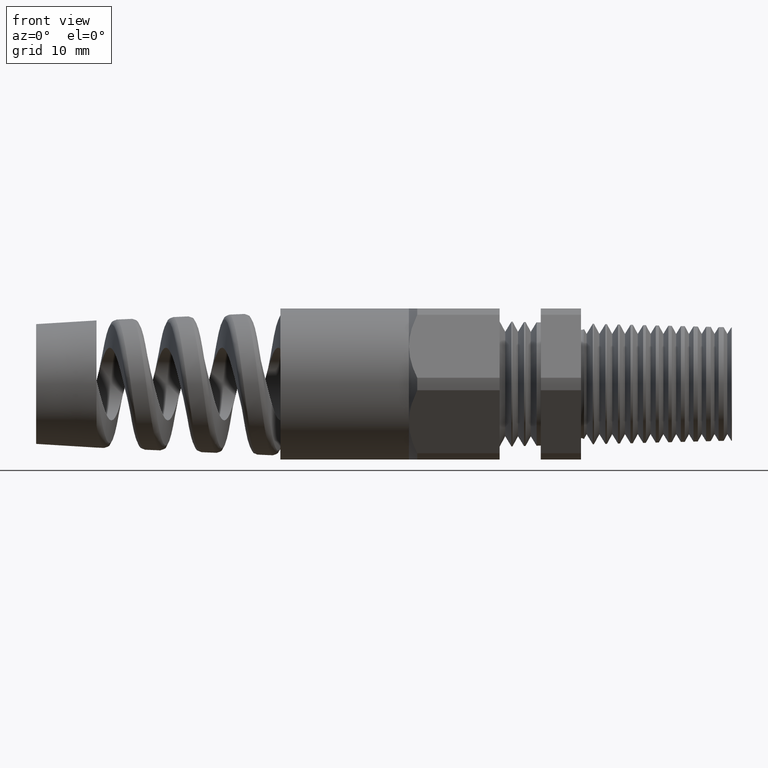
[diagram: clean part render]
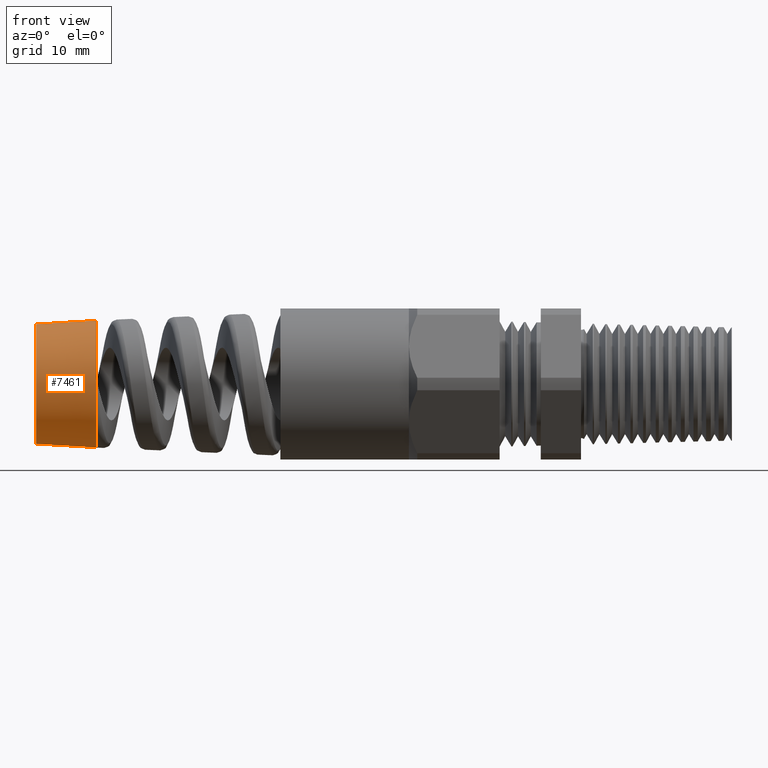
[diagram: same view with one face highlighted and labeled with its STEP entity id]
A machine part, front view. The second image highlights one B-rep face of the part: STEP entity #7461.
In plain terms, the highlighted conical surface has half-angle 3.5 deg.
Its self-contained STEP definition (entity closure, byte-faithful):
#1756 = CARTESIAN_POINT ( 'NONE',  ( -2.439999999999999900, 0.0000000000000000000, 0.2341065197523261300 ) ) ;
#1766 = DIRECTION ( 'NONE',  ( 0.9981347984218669200, 0.0000000000000000000, 0.06104853953485701200 ) ) ;
#1767 = VECTOR ( 'NONE', #1766, 39.37007874015748900 ) ;
#1768 = CARTESIAN_POINT ( 'NONE',  ( -2.203779527559055000, 0.0000000000000000000, 0.2485543827799996100 ) ) ;
#1769 = LINE ( 'NONE', #1768, #1767 ) ;
#1792 = CARTESIAN_POINT ( 'NONE',  ( -2.203779527559055000, 0.0000000000000000000, 0.2485543827799996100 ) ) ;
#1793 = DIRECTION ( 'NONE',  ( 0.0000000000000000000, 0.0000000000000000000, 1.000000000000000000 ) ) ;
#1794 = DIRECTION ( 'NONE',  ( -1.000000000000000000, 0.0000000000000000000, 0.0000000000000000000 ) ) ;
#1795 = CARTESIAN_POINT ( 'NONE',  ( -2.203779527559055000, 0.0000000000000000000, 0.0000000000000000000 ) ) ;
#1796 = AXIS2_PLACEMENT_3D ( 'NONE', #1795, #1794, #1793 ) ;
#1797 = CIRCLE ( 'NONE', #1796, 0.2485543827799996100 ) ;
#2358 = CARTESIAN_POINT ( 'NONE',  ( -2.203779527559055000, -3.043913292855725100E-017, -0.2485543827799996100 ) ) ;
#3050 = CARTESIAN_POINT ( 'NONE',  ( -2.203779527559055000, -0.1869642120629685900, -0.1637793167857891400 ) ) ;
#3299 = CARTESIAN_POINT ( 'NONE',  ( -2.203779527559055000, 0.0000000000000000000, 0.0000000000000000000 ) ) ;
#3333 = DIRECTION ( 'NONE',  ( 0.0000000000000000000, 0.0000000000000000000, -1.000000000000000000 ) ) ;
#3334 = DIRECTION ( 'NONE',  ( 1.000000000000000000, 0.0000000000000000000, 0.0000000000000000000 ) ) ;
#3335 = AXIS2_PLACEMENT_3D ( 'NONE', #3299, #3334, #3333 ) ;
#3336 = CIRCLE ( 'NONE', #3335, 0.2485543827799998300 ) ;
#3525 = FACE_OUTER_BOUND ( 'NONE', #7450, .T. ) ;
#3830 = VECTOR ( 'NONE', #3901, 39.37007874015748900 ) ;
#3832 = CARTESIAN_POINT ( 'NONE',  ( -2.203779527559055000, -3.043913292855725100E-017, -0.2485543827799996100 ) ) ;
#3837 = LINE ( 'NONE', #3832, #3830 ) ;
#3850 = DIRECTION ( 'NONE',  ( 0.0000000000000000000, 0.0000000000000000000, 1.000000000000000000 ) ) ;
#3851 = DIRECTION ( 'NONE',  ( -1.000000000000000000, 0.0000000000000000000, 0.0000000000000000000 ) ) ;
#3852 = CARTESIAN_POINT ( 'NONE',  ( -2.439999999999999900, 0.0000000000000000000, 0.0000000000000000000 ) ) ;
#3853 = AXIS2_PLACEMENT_3D ( 'NONE', #3852, #3851, #3850 ) ;
#3854 = CIRCLE ( 'NONE', #3853, 0.2341065197523261300 ) ;
#3855 = CARTESIAN_POINT ( 'NONE',  ( -2.439999999999999900, -2.955445646798926800E-017, -0.2341065197523261300 ) ) ;
#3901 = DIRECTION ( 'NONE',  ( 0.9981347984218669200, -7.476289853398327700E-018, -0.06104853953485701200 ) ) ;
#5682 = DIRECTION ( 'NONE',  ( 1.000000000000000000, 0.0000000000000000000, 0.0000000000000000000 ) ) ;
#5687 = CARTESIAN_POINT ( 'NONE',  ( -2.203779527559055000, 0.0000000000000000000, 0.0000000000000000000 ) ) ;
#5938 = AXIS2_PLACEMENT_3D ( 'NONE', #5687, #5682, #6206 ) ;
#5939 = CONICAL_SURFACE ( 'NONE', #5938, 0.2485543827799996100, 0.06108652381980166800 ) ;
#6206 = DIRECTION ( 'NONE',  ( 0.0000000000000000000, 0.0000000000000000000, 1.000000000000000000 ) ) ;
#6748 = VERTEX_POINT ( 'NONE', #2358 ) ;
#7067 = VERTEX_POINT ( 'NONE', #3050 ) ;
#7171 = EDGE_CURVE ( 'NONE', #7067, #6748, #3336, .T. ) ;
#7448 = VERTEX_POINT ( 'NONE', #3855 ) ;
#7449 = EDGE_CURVE ( 'NONE', #7448, #7476, #3854, .T. ) ;
#7450 = EDGE_LOOP ( 'NONE', ( #7458, #7472, #7480, #7484, #7488 ) ) ;
#7457 = EDGE_CURVE ( 'NONE', #7448, #6748, #3837, .T. ) ;
#7458 = ORIENTED_EDGE ( 'NONE', *, *, #7449, .F. ) ;
#7461 = ADVANCED_FACE ( 'NONE', ( #3525 ), #5939, .T. ) ;
#7472 = ORIENTED_EDGE ( 'NONE', *, *, #7457, .T. ) ;
#7476 = VERTEX_POINT ( 'NONE', #1756 ) ;
#7480 = ORIENTED_EDGE ( 'NONE', *, *, #7171, .F. ) ;
#7484 = ORIENTED_EDGE ( 'NONE', *, *, #7485, .T. ) ;
#7485 = EDGE_CURVE ( 'NONE', #7067, #7487, #1797, .T. ) ;
#7487 = VERTEX_POINT ( 'NONE', #1792 ) ;
#7488 = ORIENTED_EDGE ( 'NONE', *, *, #7504, .F. ) ;
#7504 = EDGE_CURVE ( 'NONE', #7476, #7487, #1769, .T. ) ;